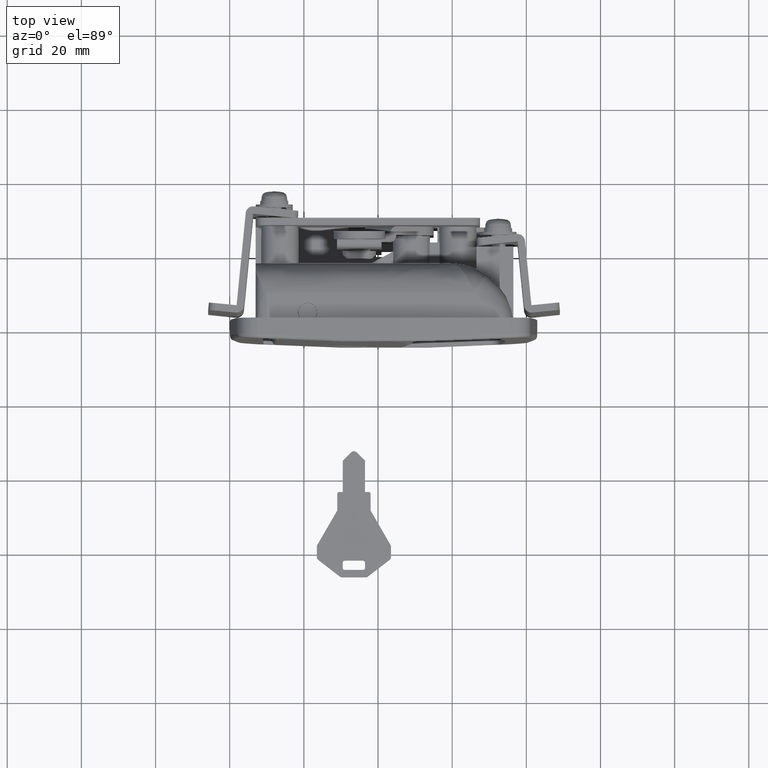
[diagram: clean part render]
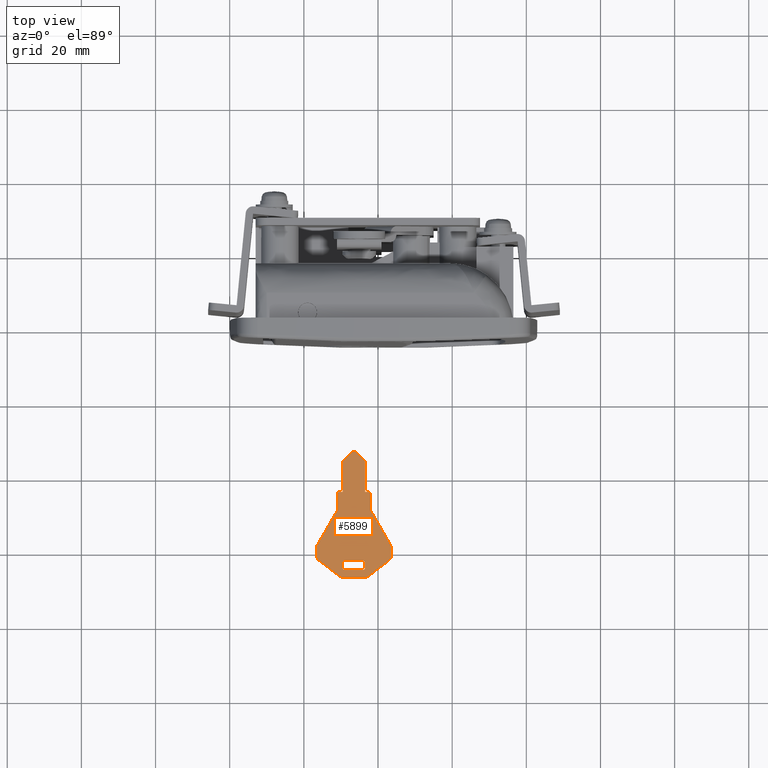
[diagram: same view with one face highlighted and labeled with its STEP entity id]
A machine part, top view. The second image highlights one B-rep face of the part: STEP entity #5899.
In plain terms, the highlighted face is a freeform B-spline surface patch.
Its self-contained STEP definition (entity closure, byte-faithful):
#5325=CARTESIAN_POINT('',(36.0,-62.153581647133613,-30.500000000000000));
#5326=VERTEX_POINT('',#5325);
#5332=CARTESIAN_POINT('',(30.999999999999648,-62.153581647133613,-30.500000000000000));
#5333=VERTEX_POINT('',#5332);
#5334=CARTESIAN_POINT('',(36.0,-62.153581647133613,-30.500000000000000));
#5335=CARTESIAN_POINT('',(30.999999999999648,-62.153581647133613,-30.500000000000000));
#5336=QUASI_UNIFORM_CURVE('',1,(#5334,#5335),.UNSPECIFIED.,.F.,.U.);
#5337=EDGE_CURVE('',#5326,#5333,#5336,.T.);
#5370=CARTESIAN_POINT('',(36.500000000000000,-62.653581647133599,-30.500000000000000));
#5371=VERTEX_POINT('',#5370);
#5377=CARTESIAN_POINT('',(36.500000000000000,-62.653581647133599,-30.500000000000000));
#5378=CARTESIAN_POINT('',(36.500000000000007,-62.153581647133606,-30.499999999999996));
#5379=CARTESIAN_POINT('',(36.0,-62.153581647133599,-30.500000000000000));
#5387=(BOUNDED_CURVE()B_SPLINE_CURVE(2,(#5377,#5378,#5379),.UNSPECIFIED.,.F.,.U.)CURVE()GEOMETRIC_REPRESENTATION_ITEM()QUASI_UNIFORM_CURVE()RATIONAL_B_SPLINE_CURVE((1.0,0.707106781186548,1.0))REPRESENTATION_ITEM(''));
#5388=EDGE_CURVE('',#5371,#5326,#5387,.T.);
#5414=CARTESIAN_POINT('',(36.500000000000000,-64.153581647133592,-30.500000000000000));
#5415=VERTEX_POINT('',#5414);
#5421=CARTESIAN_POINT('',(36.500000000000000,-64.153581647133592,-30.500000000000000));
#5422=CARTESIAN_POINT('',(36.500000000000000,-62.653581647133599,-30.500000000000000));
#5423=QUASI_UNIFORM_CURVE('',1,(#5421,#5422),.UNSPECIFIED.,.F.,.U.);
#5424=EDGE_CURVE('',#5415,#5371,#5423,.T.);
#5451=CARTESIAN_POINT('',(36.0,-64.653581647133592,-30.500000000000000));
#5452=VERTEX_POINT('',#5451);
#5458=CARTESIAN_POINT('',(36.0,-64.653581647133592,-30.500000000000000));
#5459=CARTESIAN_POINT('',(36.500000000000007,-64.653581647133592,-30.499999999999996));
#5460=CARTESIAN_POINT('',(36.500000000000000,-64.153581647133592,-30.500000000000000));
#5468=(BOUNDED_CURVE()B_SPLINE_CURVE(2,(#5458,#5459,#5460),.UNSPECIFIED.,.F.,.U.)CURVE()GEOMETRIC_REPRESENTATION_ITEM()QUASI_UNIFORM_CURVE()RATIONAL_B_SPLINE_CURVE((1.0,0.707106781186548,1.0))REPRESENTATION_ITEM(''));
#5469=EDGE_CURVE('',#5452,#5415,#5468,.T.);
#5495=CARTESIAN_POINT('',(30.999999999999648,-64.653581647133592,-30.500000000000000));
#5496=VERTEX_POINT('',#5495);
#5502=CARTESIAN_POINT('',(30.999999999999648,-64.653581647133592,-30.500000000000000));
#5503=CARTESIAN_POINT('',(36.0,-64.653581647133592,-30.500000000000000));
#5504=QUASI_UNIFORM_CURVE('',1,(#5502,#5503),.UNSPECIFIED.,.F.,.U.);
#5505=EDGE_CURVE('',#5496,#5452,#5504,.T.);
#5532=CARTESIAN_POINT('',(30.499999999999648,-64.153581647133592,-30.500000000000000));
#5533=VERTEX_POINT('',#5532);
#5539=CARTESIAN_POINT('',(30.499999999999648,-64.153581647133592,-30.500000000000000));
#5540=CARTESIAN_POINT('',(30.499999999999645,-64.653581647133592,-30.499999999999996));
#5541=CARTESIAN_POINT('',(30.999999999999648,-64.653581647133592,-30.500000000000000));
#5549=(BOUNDED_CURVE()B_SPLINE_CURVE(2,(#5539,#5540,#5541),.UNSPECIFIED.,.F.,.U.)CURVE()GEOMETRIC_REPRESENTATION_ITEM()QUASI_UNIFORM_CURVE()RATIONAL_B_SPLINE_CURVE((1.0,0.707106781186548,1.0))REPRESENTATION_ITEM(''));
#5550=EDGE_CURVE('',#5533,#5496,#5549,.T.);
#5576=CARTESIAN_POINT('',(30.499999999999648,-62.653581647133599,-30.500000000000000));
#5577=VERTEX_POINT('',#5576);
#5583=CARTESIAN_POINT('',(30.499999999999648,-62.653581647133599,-30.500000000000000));
#5584=CARTESIAN_POINT('',(30.499999999999648,-64.153581647133592,-30.500000000000000));
#5585=QUASI_UNIFORM_CURVE('',1,(#5583,#5584),.UNSPECIFIED.,.F.,.U.);
#5586=EDGE_CURVE('',#5577,#5533,#5585,.T.);
#5612=CARTESIAN_POINT('',(30.999999999999648,-62.153581647133599,-30.500000000000000));
#5613=CARTESIAN_POINT('',(30.499999999999645,-62.153581647133606,-30.499999999999996));
#5614=CARTESIAN_POINT('',(30.499999999999648,-62.653581647133599,-30.500000000000000));
#5622=(BOUNDED_CURVE()B_SPLINE_CURVE(2,(#5612,#5613,#5614),.UNSPECIFIED.,.F.,.U.)CURVE()GEOMETRIC_REPRESENTATION_ITEM()QUASI_UNIFORM_CURVE()RATIONAL_B_SPLINE_CURVE((1.0,0.707106781186548,1.0))REPRESENTATION_ITEM(''));
#5623=EDGE_CURVE('',#5333,#5577,#5622,.T.);
#5642=CARTESIAN_POINT('',(22.501000038763511,-30.955367694677630,-30.500000000000000));
#5643=CARTESIAN_POINT('',(44.499000497677947,-30.955367694677630,-30.500000000000000));
#5644=CARTESIAN_POINT('',(22.501000038763511,-68.351875855163371,-30.500000000000000));
#5645=CARTESIAN_POINT('',(44.499000497677947,-68.351875855163371,-30.500000000000000));
#5646=B_SPLINE_SURFACE_WITH_KNOTS('',1,1,((#5642,#5644),(#5643,#5645)),.UNSPECIFIED.,.F.,.F.,.U.,(2,2),(2,2),(0.0,21.998000458914440),(0.0,37.396508160485737),.UNSPECIFIED.);
#5647=CARTESIAN_POINT('',(43.500000000000000,-58.422181647133598,-30.500000000000000));
#5648=VERTEX_POINT('',#5647);
#5649=CARTESIAN_POINT('',(43.366000000000000,-57.921081647133612,-30.500000000000000));
#5650=VERTEX_POINT('',#5649);
#5651=CARTESIAN_POINT('',(43.499999999999872,-58.422181647133598,-30.500000000000000));
#5652=CARTESIAN_POINT('',(43.500604153650393,-58.153553505866086,-30.500000000000000));
#5653=CARTESIAN_POINT('',(43.366000000000000,-57.921081647133612,-30.500000000000000));
#5661=(BOUNDED_CURVE()B_SPLINE_CURVE(2,(#5651,#5652,#5653),.UNSPECIFIED.,.F.,.U.)CURVE()GEOMETRIC_REPRESENTATION_ITEM()QUASI_UNIFORM_CURVE()RATIONAL_B_SPLINE_CURVE((1.0,0.965472073306190,1.0))REPRESENTATION_ITEM(''));
#5662=EDGE_CURVE('',#5648,#5650,#5661,.T.);
#5663=ORIENTED_EDGE('',*,*,#5662,.T.);
#5664=CARTESIAN_POINT('',(38.0,-48.653581647133613,-30.500000000000000));
#5665=VERTEX_POINT('',#5664);
#5666=CARTESIAN_POINT('',(43.366000000000000,-57.921081647133612,-30.500000000000000));
#5667=CARTESIAN_POINT('',(38.0,-48.653581647133613,-30.500000000000000));
#5668=QUASI_UNIFORM_CURVE('',1,(#5666,#5667),.UNSPECIFIED.,.F.,.U.);
#5669=EDGE_CURVE('',#5650,#5665,#5668,.T.);
#5670=ORIENTED_EDGE('',*,*,#5669,.T.);
#5671=CARTESIAN_POINT('',(38.0,-44.153581647133542,-30.500000000000000));
#5672=VERTEX_POINT('',#5671);
#5673=CARTESIAN_POINT('',(38.0,-48.653581647133613,-30.500000000000000));
#5674=CARTESIAN_POINT('',(38.0,-44.153581647133542,-30.500000000000000));
#5675=QUASI_UNIFORM_CURVE('',1,(#5673,#5674),.UNSPECIFIED.,.F.,.U.);
#5676=EDGE_CURVE('',#5665,#5672,#5675,.T.);
#5677=ORIENTED_EDGE('',*,*,#5676,.T.);
#5678=CARTESIAN_POINT('',(37.500000000000000,-43.653581647133542,-30.500000000000000));
#5679=VERTEX_POINT('',#5678);
#5680=CARTESIAN_POINT('',(38.0,-44.153581647133542,-30.500000000000000));
#5681=CARTESIAN_POINT('',(38.0,-43.653581647133549,-30.499999999999996));
#5682=CARTESIAN_POINT('',(37.500000000000000,-43.653581647133542,-30.500000000000000));
#5690=(BOUNDED_CURVE()B_SPLINE_CURVE(2,(#5680,#5681,#5682),.UNSPECIFIED.,.F.,.U.)CURVE()GEOMETRIC_REPRESENTATION_ITEM()QUASI_UNIFORM_CURVE()RATIONAL_B_SPLINE_CURVE((1.0,0.707106781186548,1.0))REPRESENTATION_ITEM(''));
#5691=EDGE_CURVE('',#5672,#5679,#5690,.T.);
#5692=ORIENTED_EDGE('',*,*,#5691,.T.);
#5693=CARTESIAN_POINT('',(36.500000000000000,-43.653581647133542,-30.500000000000000));
#5694=VERTEX_POINT('',#5693);
#5695=CARTESIAN_POINT('',(37.500000000000000,-43.653581647133542,-30.500000000000000));
#5696=CARTESIAN_POINT('',(36.500000000000000,-43.653581647133542,-30.500000000000000));
#5697=QUASI_UNIFORM_CURVE('',1,(#5695,#5696),.UNSPECIFIED.,.F.,.U.);
#5698=EDGE_CURVE('',#5679,#5694,#5697,.T.);
#5699=ORIENTED_EDGE('',*,*,#5698,.T.);
#5700=CARTESIAN_POINT('',(36.500000000000000,-35.239281647133552,-30.500000000000000));
#5701=VERTEX_POINT('',#5700);
#5702=CARTESIAN_POINT('',(36.500000000000000,-43.653581647133542,-30.500000000000000));
#5703=CARTESIAN_POINT('',(36.500000000000000,-35.239281647133552,-30.500000000000000));
#5704=QUASI_UNIFORM_CURVE('',1,(#5702,#5703),.UNSPECIFIED.,.F.,.U.);
#5705=EDGE_CURVE('',#5694,#5701,#5704,.T.);
#5706=ORIENTED_EDGE('',*,*,#5705,.T.);
#5707=CARTESIAN_POINT('',(34.215980323365187,-32.955461187217551,-30.500000000000000));
#5708=VERTEX_POINT('',#5707);
#5709=CARTESIAN_POINT('',(36.500000000000000,-35.239281647133552,-30.500000000000000));
#5710=CARTESIAN_POINT('',(34.215980323365187,-32.955461187217551,-30.500000000000000));
#5711=QUASI_UNIFORM_CURVE('',1,(#5709,#5710),.UNSPECIFIED.,.F.,.U.);
#5712=EDGE_CURVE('',#5701,#5708,#5711,.T.);
#5713=ORIENTED_EDGE('',*,*,#5712,.T.);
#5714=CARTESIAN_POINT('',(32.801941994691148,-32.937540432380750,-30.500000000000000));
#5715=VERTEX_POINT('',#5714);
#5716=CARTESIAN_POINT('',(34.215980323365208,-32.955461187217537,-30.500000000000000));
#5717=CARTESIAN_POINT('',(33.517920754904630,-32.239543313080240,-30.500000000000007));
#5718=CARTESIAN_POINT('',(32.801941994691127,-32.937540432380729,-30.500000000000000));
#5726=(BOUNDED_CURVE()B_SPLINE_CURVE(2,(#5716,#5717,#5718),.UNSPECIFIED.,.F.,.U.)CURVE()GEOMETRIC_REPRESENTATION_ITEM()QUASI_UNIFORM_CURVE()RATIONAL_B_SPLINE_CURVE((1.0,0.707137619489073,1.0))REPRESENTATION_ITEM(''));
#5727=EDGE_CURVE('',#5708,#5715,#5726,.T.);
#5728=ORIENTED_EDGE('',*,*,#5727,.T.);
#5729=CARTESIAN_POINT('',(30.499999999999648,-35.239281647133552,-30.500000000000000));
#5730=VERTEX_POINT('',#5729);
#5731=CARTESIAN_POINT('',(32.801941994691148,-32.937540432380750,-30.500000000000000));
#5732=CARTESIAN_POINT('',(30.499999999999648,-35.239281647133552,-30.500000000000000));
#5733=QUASI_UNIFORM_CURVE('',1,(#5731,#5732),.UNSPECIFIED.,.F.,.U.);
#5734=EDGE_CURVE('',#5715,#5730,#5733,.T.);
#5735=ORIENTED_EDGE('',*,*,#5734,.T.);
#5736=CARTESIAN_POINT('',(30.499999999999648,-43.653581647133542,-30.500000000000000));
#5737=VERTEX_POINT('',#5736);
#5738=CARTESIAN_POINT('',(30.499999999999648,-35.239281647133552,-30.500000000000000));
#5739=CARTESIAN_POINT('',(30.499999999999648,-43.653581647133542,-30.500000000000000));
#5740=QUASI_UNIFORM_CURVE('',1,(#5738,#5739),.UNSPECIFIED.,.F.,.U.);
#5741=EDGE_CURVE('',#5730,#5737,#5740,.T.);
#5742=ORIENTED_EDGE('',*,*,#5741,.T.);
#5743=CARTESIAN_POINT('',(29.499999999999648,-43.653581647133542,-30.500000000000000));
#5744=VERTEX_POINT('',#5743);
#5745=CARTESIAN_POINT('',(30.499999999999648,-43.653581647133542,-30.500000000000000));
#5746=CARTESIAN_POINT('',(29.499999999999648,-43.653581647133542,-30.500000000000000));
#5747=QUASI_UNIFORM_CURVE('',1,(#5745,#5746),.UNSPECIFIED.,.F.,.U.);
#5748=EDGE_CURVE('',#5737,#5744,#5747,.T.);
#5749=ORIENTED_EDGE('',*,*,#5748,.T.);
#5750=CARTESIAN_POINT('',(28.999999999999648,-44.153581647133542,-30.500000000000000));
#5751=VERTEX_POINT('',#5750);
#5752=CARTESIAN_POINT('',(29.499999999999648,-43.653581647133542,-30.500000000000000));
#5753=CARTESIAN_POINT('',(28.999999999999648,-43.653581647133549,-30.499999999999996));
#5754=CARTESIAN_POINT('',(28.999999999999648,-44.153581647133542,-30.500000000000000));
#5762=(BOUNDED_CURVE()B_SPLINE_CURVE(2,(#5752,#5753,#5754),.UNSPECIFIED.,.F.,.U.)CURVE()GEOMETRIC_REPRESENTATION_ITEM()QUASI_UNIFORM_CURVE()RATIONAL_B_SPLINE_CURVE((1.0,0.707106781186548,1.0))REPRESENTATION_ITEM(''));
#5763=EDGE_CURVE('',#5744,#5751,#5762,.T.);
#5764=ORIENTED_EDGE('',*,*,#5763,.T.);
#5765=CARTESIAN_POINT('',(28.999999999999648,-48.653581647133613,-30.500000000000000));
#5766=VERTEX_POINT('',#5765);
#5767=CARTESIAN_POINT('',(28.999999999999648,-44.153581647133542,-30.500000000000000));
#5768=CARTESIAN_POINT('',(28.999999999999648,-48.653581647133613,-30.500000000000000));
#5769=QUASI_UNIFORM_CURVE('',1,(#5767,#5768),.UNSPECIFIED.,.F.,.U.);
#5770=EDGE_CURVE('',#5751,#5766,#5769,.T.);
#5771=ORIENTED_EDGE('',*,*,#5770,.T.);
#5772=CARTESIAN_POINT('',(23.647855169566800,-57.898875629619397,-30.500000000000000));
#5773=VERTEX_POINT('',#5772);
#5774=CARTESIAN_POINT('',(28.999999999999648,-48.653581647133613,-30.500000000000000));
#5775=CARTESIAN_POINT('',(23.647855169566800,-57.898875629619397,-30.500000000000000));
#5776=QUASI_UNIFORM_CURVE('',1,(#5774,#5775),.UNSPECIFIED.,.F.,.U.);
#5777=EDGE_CURVE('',#5766,#5773,#5776,.T.);
#5778=ORIENTED_EDGE('',*,*,#5777,.T.);
#5779=CARTESIAN_POINT('',(23.499999999999648,-58.422181647133598,-30.500000000000000));
#5780=VERTEX_POINT('',#5779);
#5781=CARTESIAN_POINT('',(23.647855169566800,-57.898875629619397,-30.500000000000000));
#5782=CARTESIAN_POINT('',(23.499999999999652,-58.139641097973680,-30.499999999999993));
#5783=CARTESIAN_POINT('',(23.499999999999648,-58.422181647133598,-30.500000000000000));
#5791=(BOUNDED_CURVE()B_SPLINE_CURVE(2,(#5781,#5782,#5783),.UNSPECIFIED.,.F.,.U.)CURVE()GEOMETRIC_REPRESENTATION_ITEM()QUASI_UNIFORM_CURVE()RATIONAL_B_SPLINE_CURVE((1.0,0.962326563707156,1.0))REPRESENTATION_ITEM(''));
#5792=EDGE_CURVE('',#5773,#5780,#5791,.T.);
#5793=ORIENTED_EDGE('',*,*,#5792,.T.);
#5794=CARTESIAN_POINT('',(23.500000000000000,-61.161181647133603,-30.500000000000000));
#5795=VERTEX_POINT('',#5794);
#5796=CARTESIAN_POINT('',(23.499999999999648,-58.422181647133598,-30.500000000000000));
#5797=CARTESIAN_POINT('',(23.500000000000000,-61.161181647133603,-30.500000000000000));
#5798=QUASI_UNIFORM_CURVE('',1,(#5796,#5797),.UNSPECIFIED.,.F.,.U.);
#5799=EDGE_CURVE('',#5780,#5795,#5798,.T.);
#5800=ORIENTED_EDGE('',*,*,#5799,.T.);
#5801=CARTESIAN_POINT('',(23.889999999999649,-61.953781647133603,-30.500000000000000));
#5802=VERTEX_POINT('',#5801);
#5803=CARTESIAN_POINT('',(23.499999999999769,-61.161181647133603,-30.500000000000000));
#5804=CARTESIAN_POINT('',(23.499727425435800,-61.653565805700225,-30.500000000000004));
#5805=CARTESIAN_POINT('',(23.889999999999681,-61.953781647133560,-30.500000000000000));
#5813=(BOUNDED_CURVE()B_SPLINE_CURVE(2,(#5803,#5804,#5805),.UNSPECIFIED.,.F.,.U.)CURVE()GEOMETRIC_REPRESENTATION_ITEM()QUASI_UNIFORM_CURVE()RATIONAL_B_SPLINE_CURVE((1.0,0.897017212776769,1.0))REPRESENTATION_ITEM(''));
#5814=EDGE_CURVE('',#5795,#5802,#5813,.T.);
#5815=ORIENTED_EDGE('',*,*,#5814,.T.);
#5816=CARTESIAN_POINT('',(29.729999923456202,-66.446181588252699,-30.500000000000000));
#5817=VERTEX_POINT('',#5816);
#5818=CARTESIAN_POINT('',(23.889999999999649,-61.953781647133603,-30.500000000000000));
#5819=CARTESIAN_POINT('',(29.729999923456202,-66.446181588252699,-30.500000000000000));
#5820=QUASI_UNIFORM_CURVE('',1,(#5818,#5819),.UNSPECIFIED.,.F.,.U.);
#5821=EDGE_CURVE('',#5802,#5817,#5820,.T.);
#5822=ORIENTED_EDGE('',*,*,#5821,.T.);
#5823=CARTESIAN_POINT('',(30.340000000000000,-66.653581647133890,-30.500000000000000));
#5824=VERTEX_POINT('',#5823);
#5825=CARTESIAN_POINT('',(29.729999923456180,-66.446181588252728,-30.500000000000000));
#5826=CARTESIAN_POINT('',(29.999715504469442,-66.653659416719464,-30.500000000000000));
#5827=CARTESIAN_POINT('',(30.340000000000000,-66.653581647133933,-30.500000000000000));
#5835=(BOUNDED_CURVE()B_SPLINE_CURVE(2,(#5825,#5826,#5827),.UNSPECIFIED.,.F.,.U.)CURVE()GEOMETRIC_REPRESENTATION_ITEM()QUASI_UNIFORM_CURVE()RATIONAL_B_SPLINE_CURVE((1.0,0.946699135978061,1.0))REPRESENTATION_ITEM(''));
#5836=EDGE_CURVE('',#5817,#5824,#5835,.T.);
#5837=ORIENTED_EDGE('',*,*,#5836,.T.);
#5838=CARTESIAN_POINT('',(36.659999999999997,-66.653581647133606,-30.500000000000000));
#5839=VERTEX_POINT('',#5838);
#5840=CARTESIAN_POINT('',(30.340000000000000,-66.653581647133890,-30.500000000000000));
#5841=CARTESIAN_POINT('',(36.659999999999997,-66.653581647133606,-30.500000000000000));
#5842=QUASI_UNIFORM_CURVE('',1,(#5840,#5841),.UNSPECIFIED.,.F.,.U.);
#5843=EDGE_CURVE('',#5824,#5839,#5842,.T.);
#5844=ORIENTED_EDGE('',*,*,#5843,.T.);
#5845=CARTESIAN_POINT('',(37.234787180115902,-66.471884584665901,-30.500000000000000));
#5846=VERTEX_POINT('',#5845);
#5847=CARTESIAN_POINT('',(36.659999999999997,-66.653581647133606,-30.500000000000000));
#5848=CARTESIAN_POINT('',(36.976111891066978,-66.653581647133606,-30.500000000000004));
#5849=CARTESIAN_POINT('',(37.234787180116022,-66.471884584666071,-30.500000000000000));
#5857=(BOUNDED_CURVE()B_SPLINE_CURVE(2,(#5847,#5848,#5849),.UNSPECIFIED.,.F.,.U.)CURVE()GEOMETRIC_REPRESENTATION_ITEM()QUASI_UNIFORM_CURVE()RATIONAL_B_SPLINE_CURVE((1.0,0.953494346478381,1.0))REPRESENTATION_ITEM(''));
#5858=EDGE_CURVE('',#5839,#5846,#5857,.T.);
#5859=ORIENTED_EDGE('',*,*,#5858,.T.);
#5860=CARTESIAN_POINT('',(43.109999999999999,-61.953781647133603,-30.500000000000000));
#5861=VERTEX_POINT('',#5860);
#5862=CARTESIAN_POINT('',(37.234787180115902,-66.471884584665901,-30.500000000000000));
#5863=CARTESIAN_POINT('',(43.109999999999999,-61.953781647133603,-30.500000000000000));
#5864=QUASI_UNIFORM_CURVE('',1,(#5862,#5863),.UNSPECIFIED.,.F.,.U.);
#5865=EDGE_CURVE('',#5846,#5861,#5864,.T.);
#5866=ORIENTED_EDGE('',*,*,#5865,.T.);
#5867=CARTESIAN_POINT('',(43.500000000000000,-61.161181647133603,-30.500000000000000));
#5868=VERTEX_POINT('',#5867);
#5869=CARTESIAN_POINT('',(43.109999999999893,-61.953781647133447,-30.500000000000000));
#5870=CARTESIAN_POINT('',(43.500345498576458,-61.653601688068271,-30.500000000000004));
#5871=CARTESIAN_POINT('',(43.500000000000000,-61.161181647133603,-30.500000000000000));
#5879=(BOUNDED_CURVE()B_SPLINE_CURVE(2,(#5869,#5870,#5871),.UNSPECIFIED.,.F.,.U.)CURVE()GEOMETRIC_REPRESENTATION_ITEM()QUASI_UNIFORM_CURVE()RATIONAL_B_SPLINE_CURVE((1.0,0.896951764299162,1.0))REPRESENTATION_ITEM(''));
#5880=EDGE_CURVE('',#5861,#5868,#5879,.T.);
#5881=ORIENTED_EDGE('',*,*,#5880,.T.);
#5882=CARTESIAN_POINT('',(43.500000000000000,-61.161181647133603,-30.500000000000000));
#5883=CARTESIAN_POINT('',(43.500000000000000,-58.422181647133598,-30.500000000000000));
#5884=QUASI_UNIFORM_CURVE('',1,(#5882,#5883),.UNSPECIFIED.,.F.,.U.);
#5885=EDGE_CURVE('',#5868,#5648,#5884,.T.);
#5886=ORIENTED_EDGE('',*,*,#5885,.T.);
#5887=EDGE_LOOP('',(#5663,#5670,#5677,#5692,#5699,#5706,#5713,#5728,#5735,#5742,#5749,#5764,#5771,#5778,#5793,#5800,#5815,#5822,#5837,#5844,#5859,#5866,#5881,#5886));
#5888=FACE_OUTER_BOUND('',#5887,.T.);
#5889=ORIENTED_EDGE('',*,*,#5623,.F.);
#5890=ORIENTED_EDGE('',*,*,#5337,.F.);
#5891=ORIENTED_EDGE('',*,*,#5388,.F.);
#5892=ORIENTED_EDGE('',*,*,#5424,.F.);
#5893=ORIENTED_EDGE('',*,*,#5469,.F.);
#5894=ORIENTED_EDGE('',*,*,#5505,.F.);
#5895=ORIENTED_EDGE('',*,*,#5550,.F.);
#5896=ORIENTED_EDGE('',*,*,#5586,.F.);
#5897=EDGE_LOOP('',(#5889,#5890,#5891,#5892,#5893,#5894,#5895,#5896));
#5898=FACE_BOUND('',#5897,.T.);
#5899=ADVANCED_FACE('',(#5888,#5898),#5646,.F.);